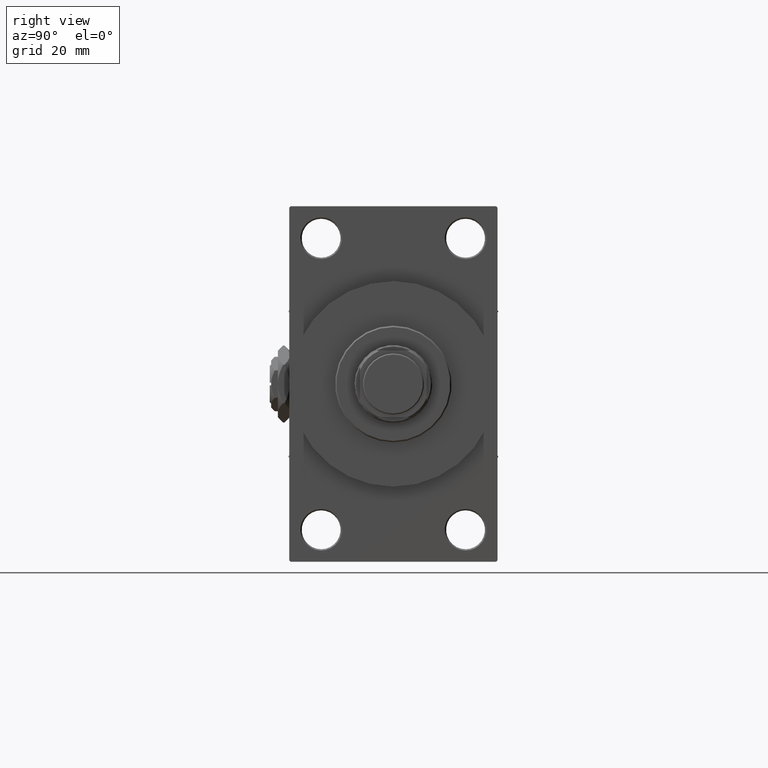
[diagram: clean part render]
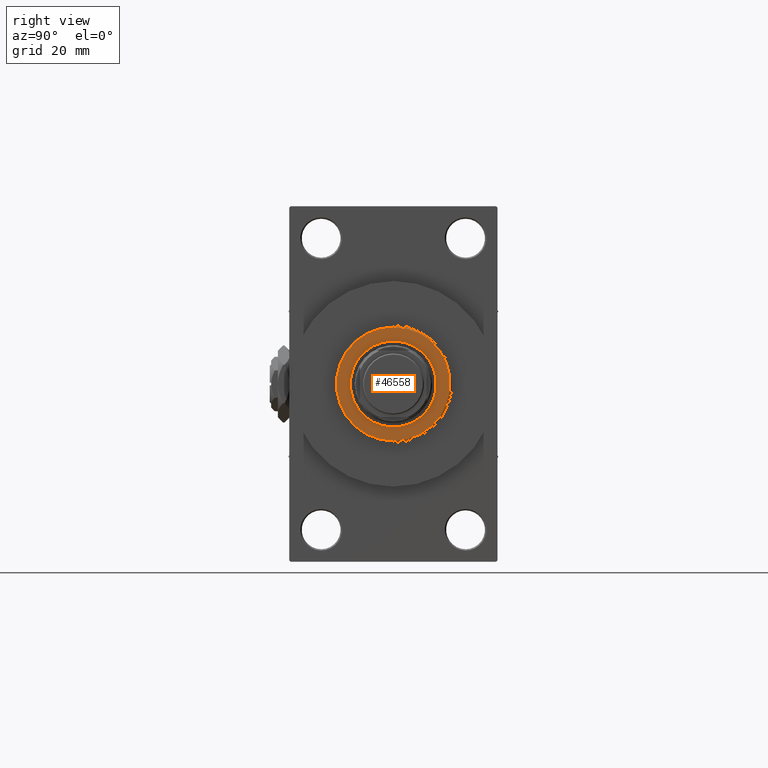
[diagram: same view with one face highlighted and labeled with its STEP entity id]
A machine part, right view. The second image highlights one B-rep face of the part: STEP entity #46558.
In plain terms, the highlighted planar face has unit normal (1, -0, -0).
Its self-contained STEP definition (entity closure, byte-faithful):
#3190 = CARTESIAN_POINT ( 'NONE',  ( -15.50000000000000000, 1.898202538678397557E-15, 52.25999999999999801 ) ) ;
#5979 = VERTEX_POINT ( 'NONE', #3190 ) ;
#6682 = VERTEX_POINT ( 'NONE', #21533 ) ;
#7238 = AXIS2_PLACEMENT_3D ( 'NONE', #28765, #9652, #25244 ) ;
#8216 = ORIENTED_EDGE ( 'NONE', *, *, #38819, .F. ) ;
#9652 = DIRECTION ( 'NONE',  ( 0.000000000000000000, 0.000000000000000000, 1.000000000000000000 ) ) ;
#10313 = FACE_BOUND ( 'NONE', #25038, .T. ) ;
#13483 = AXIS2_PLACEMENT_3D ( 'NONE', #18355, #40742, #33210 ) ;
#14595 = FACE_OUTER_BOUND ( 'NONE', #29280, .T. ) ;
#14896 = VERTEX_POINT ( 'NONE', #20915 ) ;
#15476 = DIRECTION ( 'NONE',  ( 0.000000000000000000, 0.000000000000000000, 1.000000000000000000 ) ) ;
#16334 = CARTESIAN_POINT ( 'NONE',  ( 0.000000000000000000, 0.000000000000000000, 52.25999999999999801 ) ) ;
#17980 = EDGE_CURVE ( 'NONE', #32811, #5979, #20890, .T. ) ;
#18169 = AXIS2_PLACEMENT_3D ( 'NONE', #38619, #15476, #35092 ) ;
#18355 = CARTESIAN_POINT ( 'NONE',  ( 0.000000000000000000, 0.000000000000000000, 52.25999999999999801 ) ) ;
#20890 = CIRCLE ( 'NONE', #7238, 15.50000000000000000 ) ;
#20915 = CARTESIAN_POINT ( 'NONE',  ( -20.50000000000000355, 0.000000000000000000, 52.25999999999999801 ) ) ;
#21169 = CIRCLE ( 'NONE', #22795, 20.50000000000000355 ) ;
#21533 = CARTESIAN_POINT ( 'NONE',  ( 20.50000000000000355, 2.541142108230758269E-15, 52.25999999999999801 ) ) ;
#22795 = AXIS2_PLACEMENT_3D ( 'NONE', #16334, #32165, #27894 ) ;
#25038 = EDGE_LOOP ( 'NONE', ( #26012, #8216 ) ) ;
#25244 = DIRECTION ( 'NONE',  ( 1.000000000000000000, 0.000000000000000000, 0.000000000000000000 ) ) ;
#26012 = ORIENTED_EDGE ( 'NONE', *, *, #17980, .F. ) ;
#27894 = DIRECTION ( 'NONE',  ( 1.000000000000000000, 0.000000000000000000, 0.000000000000000000 ) ) ;
#28765 = CARTESIAN_POINT ( 'NONE',  ( 0.000000000000000000, 0.000000000000000000, 52.25999999999999801 ) ) ;
#28939 = ORIENTED_EDGE ( 'NONE', *, *, #29545, .T. ) ;
#29280 = EDGE_LOOP ( 'NONE', ( #28939, #35588 ) ) ;
#29545 = EDGE_CURVE ( 'NONE', #14896, #6682, #21169, .T. ) ;
#30977 = CARTESIAN_POINT ( 'NONE',  ( 15.50000000000000000, 0.000000000000000000, 52.25999999999999801 ) ) ;
#31069 = CIRCLE ( 'NONE', #35086, 20.50000000000000355 ) ;
#32165 = DIRECTION ( 'NONE',  ( 0.000000000000000000, 0.000000000000000000, 1.000000000000000000 ) ) ;
#32811 = VERTEX_POINT ( 'NONE', #30977 ) ;
#33210 = DIRECTION ( 'NONE',  ( 1.000000000000000000, 0.000000000000000000, -0.000000000000000000 ) ) ;
#35086 = AXIS2_PLACEMENT_3D ( 'NONE', #35633, #39653, #39410 ) ;
#35092 = DIRECTION ( 'NONE',  ( 1.000000000000000000, 0.000000000000000000, 0.000000000000000000 ) ) ;
#35588 = ORIENTED_EDGE ( 'NONE', *, *, #43761, .T. ) ;
#35633 = CARTESIAN_POINT ( 'NONE',  ( 0.000000000000000000, 0.000000000000000000, 52.25999999999999801 ) ) ;
#37466 = CIRCLE ( 'NONE', #18169, 15.50000000000000000 ) ;
#37485 = PLANE ( 'NONE',  #13483 ) ;
#38619 = CARTESIAN_POINT ( 'NONE',  ( 0.000000000000000000, 0.000000000000000000, 52.25999999999999801 ) ) ;
#38819 = EDGE_CURVE ( 'NONE', #5979, #32811, #37466, .T. ) ;
#39410 = DIRECTION ( 'NONE',  ( 1.000000000000000000, 0.000000000000000000, 0.000000000000000000 ) ) ;
#39653 = DIRECTION ( 'NONE',  ( 0.000000000000000000, 0.000000000000000000, 1.000000000000000000 ) ) ;
#40742 = DIRECTION ( 'NONE',  ( 0.000000000000000000, 0.000000000000000000, 1.000000000000000000 ) ) ;
#43761 = EDGE_CURVE ( 'NONE', #6682, #14896, #31069, .T. ) ;
#46558 = ADVANCED_FACE ( 'NONE', ( #10313, #14595 ), #37485, .T. ) ;